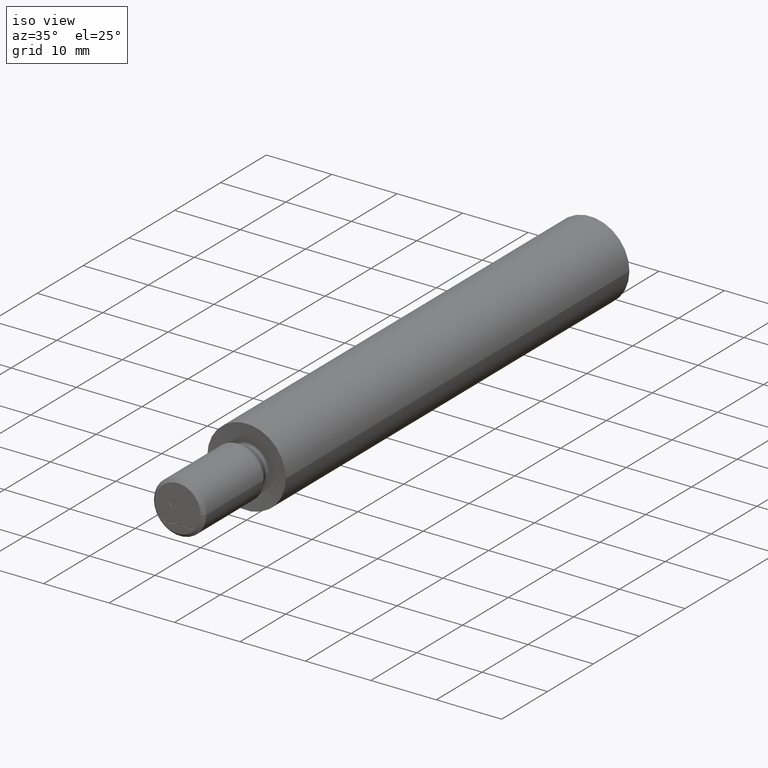
[diagram: clean part render]
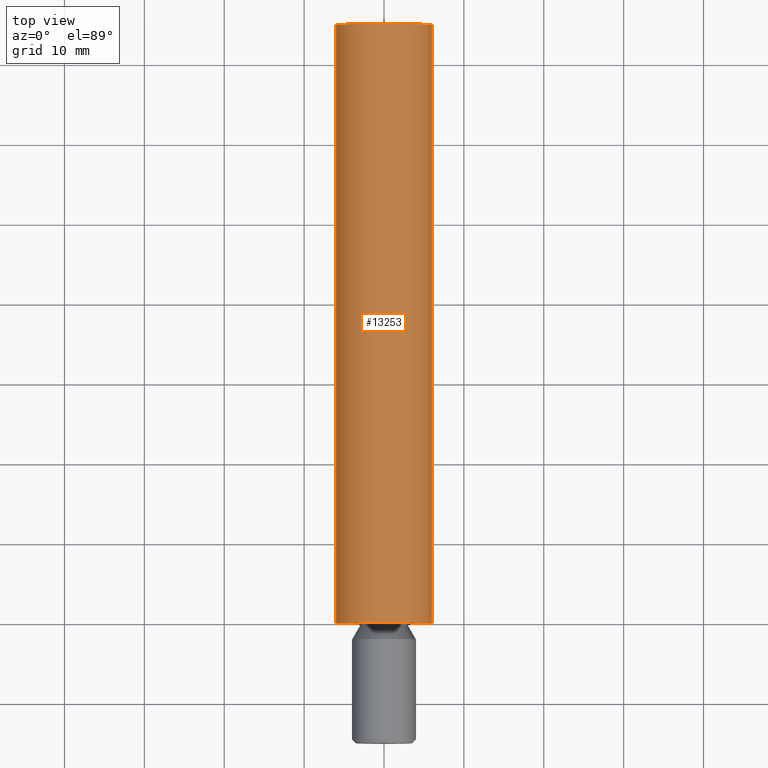
[diagram: tour spotlight — one face highlighted and labeled with its STEP entity id]
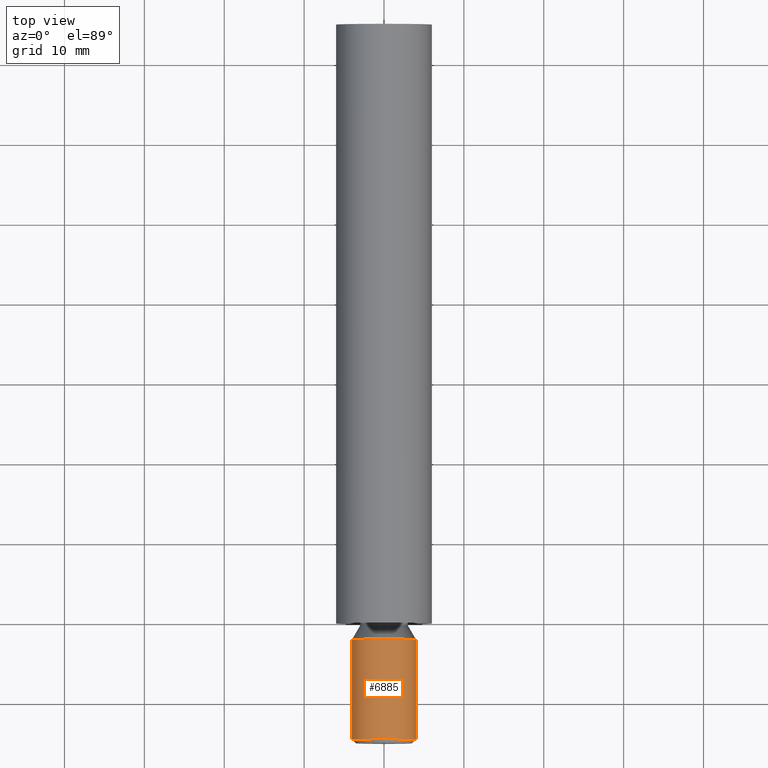
[diagram: tour spotlight — one face highlighted and labeled with its STEP entity id]
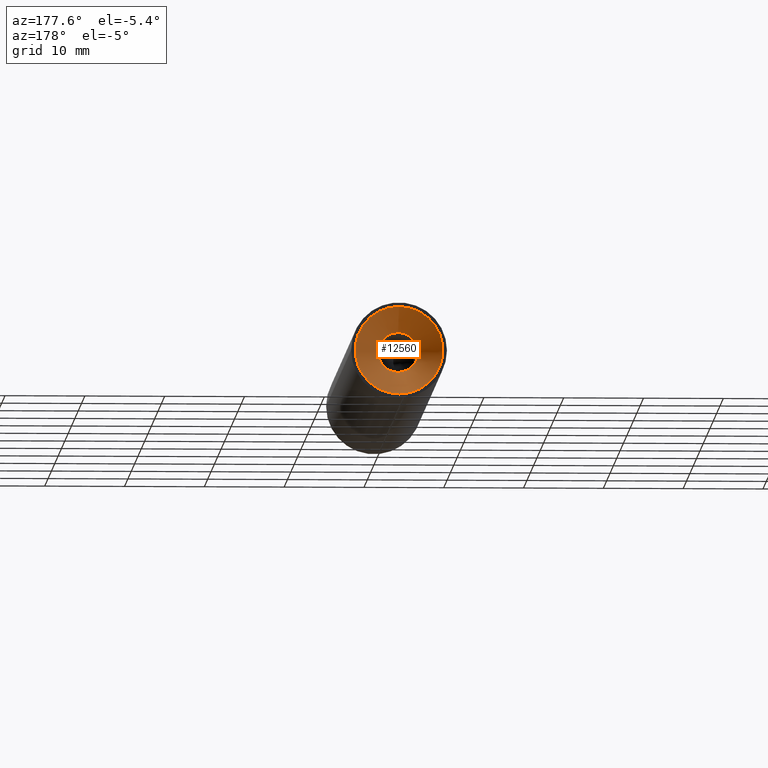
[diagram: tour spotlight — one face highlighted and labeled with its STEP entity id]
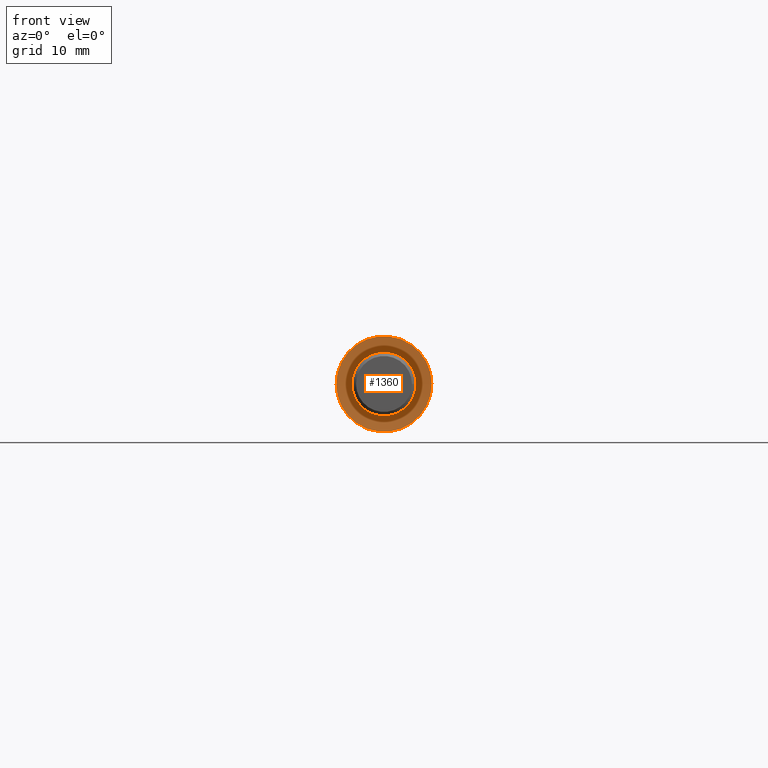
[diagram: tour spotlight — one face highlighted and labeled with its STEP entity id]
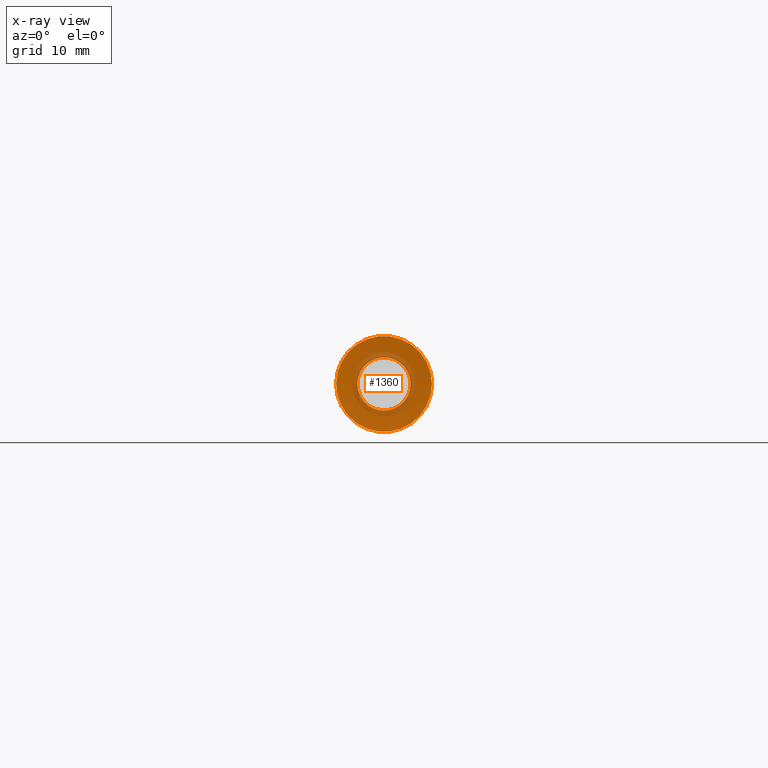
[diagram: x-ray of the same camera — body ghosted, this tour face saturated]
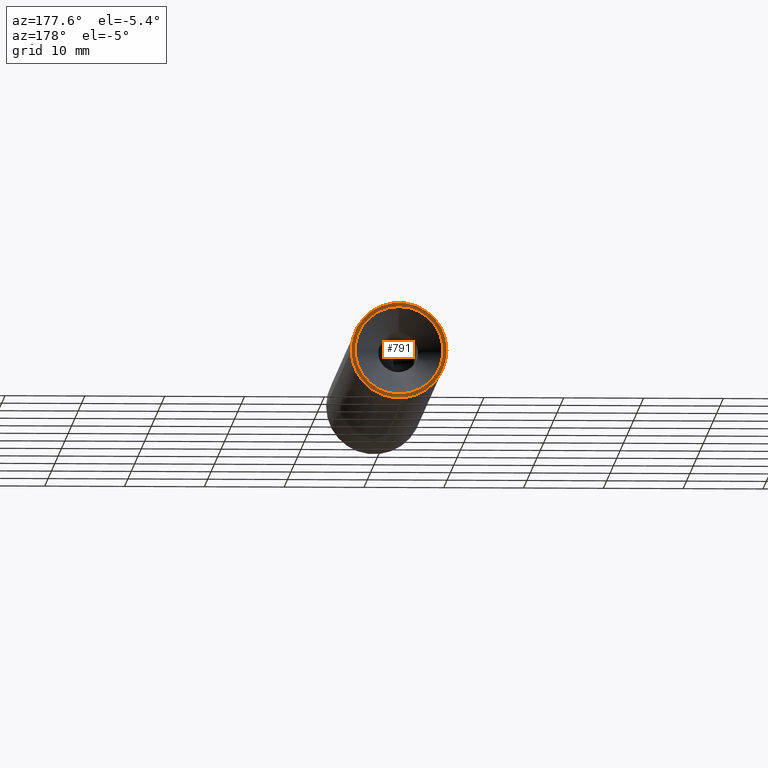
[diagram: tour spotlight — one face highlighted and labeled with its STEP entity id]
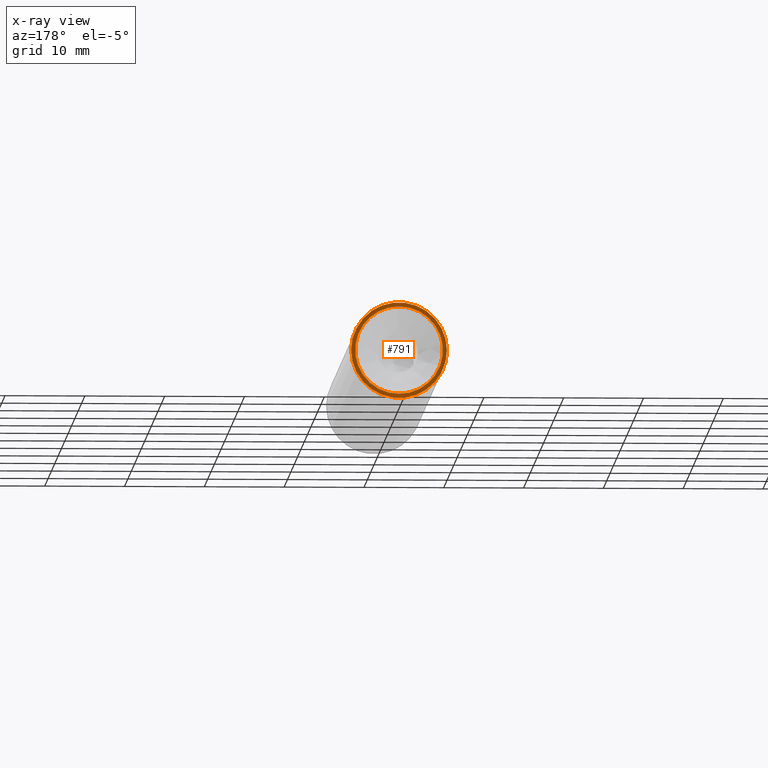
[diagram: x-ray of the same camera — body ghosted, this tour face saturated]
A machine part: a face-by-face anatomy tour. The part has 269 B-rep faces; the first image is the clean iso view, then the 5 largest visible faces are spotlighted one at a time (largest first), each with its STEP entity span.

Face 1 — top view, entity #13253. In plain terms, the highlighted cylindrical surface (bore or boss wall) has radius 6 mm, axis along (0, -1, -0).
Definition (entity closure, byte-faithful):
#669 = CARTESIAN_POINT ( 'NONE',  ( 1.925929944387235853E-31, -15.00000000000000000, 0.000000000000000000 ) ) ;
#1049 = CARTESIAN_POINT ( 'NONE',  ( 5.999999999999996447, 75.00000000000000000, 0.000000000000000000 ) ) ;
#1297 = CIRCLE ( 'NONE', #13381, 6.000000000000009770 ) ;
#1742 = EDGE_CURVE ( 'NONE', #12893, #12893, #12750, .T. ) ;
#3466 = AXIS2_PLACEMENT_3D ( 'NONE', #12904, #11748, #8670 ) ;
#3836 = EDGE_LOOP ( 'NONE', ( #10700 ) ) ;
#4492 = FACE_OUTER_BOUND ( 'NONE', #3836, .T. ) ;
#4687 = CARTESIAN_POINT ( 'NONE',  ( 1.604941620322696398E-31, 0.000000000000000000, 0.000000000000000000 ) ) ;
#4933 = DIRECTION ( 'NONE',  ( 1.000000000000000000, 0.000000000000000000, 0.000000000000000000 ) ) ;
#5698 = DIRECTION ( 'NONE',  ( 1.000000000000000000, 2.139922160430261983E-33, 0.000000000000000000 ) ) ;
#5813 = FACE_OUTER_BOUND ( 'NONE', #12936, .T. ) ;
#6008 = AXIS2_PLACEMENT_3D ( 'NONE', #669, #13695, #4933 ) ;
#6706 = EDGE_CURVE ( 'NONE', #13224, #13224, #1297, .T. ) ;
#7904 = DIRECTION ( 'NONE',  ( 2.139922160430262325E-33, -1.000000000000000000, -0.000000000000000000 ) ) ;
#8670 = DIRECTION ( 'NONE',  ( 1.000000000000000000, 0.000000000000000000, 0.000000000000000000 ) ) ;
#9497 = ORIENTED_EDGE ( 'NONE', *, *, #1742, .T. ) ;
#10700 = ORIENTED_EDGE ( 'NONE', *, *, #6706, .F. ) ;
#11393 = CYLINDRICAL_SURFACE ( 'NONE', #6008, 6.000000000000003553 ) ;
#11645 = CARTESIAN_POINT ( 'NONE',  ( 6.000000000000009770, 1.283953296258159242E-32, 0.000000000000000000 ) ) ;
#11748 = DIRECTION ( 'NONE',  ( 2.139922160430262325E-33, -1.000000000000000000, -0.000000000000000000 ) ) ;
#12750 = CIRCLE ( 'NONE', #3466, 5.999999999999996447 ) ;
#12893 = VERTEX_POINT ( 'NONE', #1049 ) ;
#12904 = CARTESIAN_POINT ( 'NONE',  ( 0.000000000000000000, 75.00000000000000000, 0.000000000000000000 ) ) ;
#12936 = EDGE_LOOP ( 'NONE', ( #9497 ) ) ;
#13224 = VERTEX_POINT ( 'NONE', #11645 ) ;
#13253 = ADVANCED_FACE ( 'NONE', ( #5813, #4492 ), #11393, .T. ) ;
#13381 = AXIS2_PLACEMENT_3D ( 'NONE', #4687, #7904, #5698 ) ;
#13695 = DIRECTION ( 'NONE',  ( 2.139922160430262325E-33, -1.000000000000000000, -0.000000000000000000 ) ) ;

Face 2 — top view, entity #6885. In plain terms, the highlighted cylindrical surface (bore or boss wall) has radius 4 mm, axis along (0, -1, -0).
Definition (entity closure, byte-faithful):
#623 = ORIENTED_EDGE ( 'NONE', *, *, #6923, .T. ) ;
#1381 = EDGE_LOOP ( 'NONE', ( #623 ) ) ;
#1490 = DIRECTION ( 'NONE',  ( 1.000000000000000000, 0.000000000000000000, 0.000000000000000000 ) ) ;
#1540 = AXIS2_PLACEMENT_3D ( 'NONE', #4414, #12796, #12834 ) ;
#1937 = CIRCLE ( 'NONE', #3356, 4.000000000000000000 ) ;
#2947 = EDGE_LOOP ( 'NONE', ( #7536 ) ) ;
#3356 = AXIS2_PLACEMENT_3D ( 'NONE', #8978, #5800, #1490 ) ;
#4120 = FACE_OUTER_BOUND ( 'NONE', #1381, .T. ) ;
#4414 = CARTESIAN_POINT ( 'NONE',  ( 1.925929944387235853E-31, -15.00000000000000000, 0.000000000000000000 ) ) ;
#5517 = DIRECTION ( 'NONE',  ( 1.000000000000000000, 0.000000000000000000, 0.000000000000000000 ) ) ;
#5800 = DIRECTION ( 'NONE',  ( 2.139922160430262325E-33, -1.000000000000000000, -0.000000000000000000 ) ) ;
#6728 = CYLINDRICAL_SURFACE ( 'NONE', #1540, 4.000000000000000888 ) ;
#6885 = ADVANCED_FACE ( 'NONE', ( #4120, #12523 ), #6728, .T. ) ;
#6923 = EDGE_CURVE ( 'NONE', #10591, #10591, #9721, .T. ) ;
#7446 = VERTEX_POINT ( 'NONE', #10445 ) ;
#7536 = ORIENTED_EDGE ( 'NONE', *, *, #8329, .T. ) ;
#7615 = DIRECTION ( 'NONE',  ( -2.139922160430250693E-33, 1.000000000000000000, 0.000000000000000000 ) ) ;
#7715 = CARTESIAN_POINT ( 'NONE',  ( 1.915230333585084348E-31, -14.49999999999998934, 0.000000000000000000 ) ) ;
#8329 = EDGE_CURVE ( 'NONE', #7446, #7446, #1937, .T. ) ;
#8978 = CARTESIAN_POINT ( 'NONE',  ( 1.647740063531301761E-31, -2.000000000000000000, 0.000000000000000000 ) ) ;
#9721 = CIRCLE ( 'NONE', #12413, 4.000000000000000888 ) ;
#10445 = CARTESIAN_POINT ( 'NONE',  ( 4.000000000000000000, -2.000000000000000000, 0.000000000000000000 ) ) ;
#10591 = VERTEX_POINT ( 'NONE', #11549 ) ;
#11549 = CARTESIAN_POINT ( 'NONE',  ( 4.000000000000000888, -14.49999999999998934, 0.000000000000000000 ) ) ;
#12413 = AXIS2_PLACEMENT_3D ( 'NONE', #7715, #7615, #5517 ) ;
#12523 = FACE_OUTER_BOUND ( 'NONE', #2947, .T. ) ;
#12796 = DIRECTION ( 'NONE',  ( 2.139922160430262325E-33, -1.000000000000000000, -0.000000000000000000 ) ) ;
#12834 = DIRECTION ( 'NONE',  ( 1.000000000000000000, 0.000000000000000000, 0.000000000000000000 ) ) ;

Face 3 — auxiliary view, entity #12560. In plain terms, the highlighted conical surface has half-angle 45 deg.
Definition (entity closure, byte-faithful):
#660 = DIRECTION ( 'NONE',  ( 0.000000000000000000, 0.000000000000000000, 1.000000000000000000 ) ) ;
#1553 = EDGE_CURVE ( 'NONE', #3659, #3659, #7289, .T. ) ;
#1814 = ORIENTED_EDGE ( 'NONE', *, *, #1553, .T. ) ;
#1892 = CARTESIAN_POINT ( 'NONE',  ( -1.604941620322696617E-31, 75.00000000000000000, 0.000000000000000000 ) ) ;
#2114 = CARTESIAN_POINT ( 'NONE',  ( -1.604941620322696617E-31, 75.00000000000000000, 5.500000000000000000 ) ) ;
#2487 = CIRCLE ( 'NONE', #12819, 2.499999999999992895 ) ;
#3057 = DIRECTION ( 'NONE',  ( 0.000000000000000000, 0.000000000000000000, 1.000000000000000000 ) ) ;
#3659 = VERTEX_POINT ( 'NONE', #2114 ) ;
#3852 = DIRECTION ( 'NONE',  ( 0.000000000000000000, -1.000000000000000000, 0.000000000000000000 ) ) ;
#4384 = EDGE_CURVE ( 'NONE', #4822, #4822, #2487, .T. ) ;
#4423 = AXIS2_PLACEMENT_3D ( 'NONE', #9792, #5478, #4462 ) ;
#4462 = DIRECTION ( 'NONE',  ( 0.000000000000000000, 0.000000000000000000, 1.000000000000000000 ) ) ;
#4822 = VERTEX_POINT ( 'NONE', #9589 ) ;
#4923 = CARTESIAN_POINT ( 'NONE',  ( -1.604941620322696617E-31, 71.99999999999998579, 0.000000000000000000 ) ) ;
#5478 = DIRECTION ( 'NONE',  ( -0.000000000000000000, 1.000000000000000000, -0.000000000000000000 ) ) ;
#6093 = EDGE_LOOP ( 'NONE', ( #1814 ) ) ;
#6979 = AXIS2_PLACEMENT_3D ( 'NONE', #1892, #9286, #3057 ) ;
#7130 = FACE_OUTER_BOUND ( 'NONE', #6093, .T. ) ;
#7289 = CIRCLE ( 'NONE', #6979, 5.500000000000000000 ) ;
#8290 = CONICAL_SURFACE ( 'NONE', #4423, 5.500000000000000000, 0.7853981633974479459 ) ;
#9286 = DIRECTION ( 'NONE',  ( -0.000000000000000000, 1.000000000000000000, -0.000000000000000000 ) ) ;
#9589 = CARTESIAN_POINT ( 'NONE',  ( -1.604941620322696617E-31, 71.99999999999998579, 2.499999999999992895 ) ) ;
#9792 = CARTESIAN_POINT ( 'NONE',  ( -1.604941620322696617E-31, 75.00000000000000000, 0.000000000000000000 ) ) ;
#10954 = ORIENTED_EDGE ( 'NONE', *, *, #4384, .T. ) ;
#11752 = FACE_BOUND ( 'NONE', #12324, .T. ) ;
#12324 = EDGE_LOOP ( 'NONE', ( #10954 ) ) ;
#12560 = ADVANCED_FACE ( 'NONE', ( #11752, #7130 ), #8290, .F. ) ;
#12819 = AXIS2_PLACEMENT_3D ( 'NONE', #4923, #3852, #660 ) ;

Face 4 — front view, entity #1360. An x-ray twin of the same camera follows (body ghosted, this face saturated) — the face is partly hidden behind the body. In plain terms, the highlighted conical surface has half-angle 85 deg.
Definition (entity closure, byte-faithful):
#670 = EDGE_CURVE ( 'NONE', #2336, #2336, #8296, .T. ) ;
#1149 = EDGE_LOOP ( 'NONE', ( #10823 ) ) ;
#1256 = CARTESIAN_POINT ( 'NONE',  ( 1.599924287923588925E-31, 0.2344633132870081738, 0.000000000000000000 ) ) ;
#1297 = CIRCLE ( 'NONE', #13381, 6.000000000000009770 ) ;
#1360 = ADVANCED_FACE ( 'NONE', ( #5658, #3018 ), #10084, .F. ) ;
#2336 = VERTEX_POINT ( 'NONE', #3093 ) ;
#3018 = FACE_BOUND ( 'NONE', #1149, .T. ) ;
#3093 = CARTESIAN_POINT ( 'NONE',  ( 3.320072066050799187, 0.2344633132870081738, 0.000000000000000000 ) ) ;
#3244 = EDGE_LOOP ( 'NONE', ( #8930 ) ) ;
#3439 = DIRECTION ( 'NONE',  ( 2.139922160430262325E-33, -1.000000000000000000, -0.000000000000000000 ) ) ;
#3522 = DIRECTION ( 'NONE',  ( 1.000000000000000000, 0.000000000000000000, 0.000000000000000000 ) ) ;
#3615 = AXIS2_PLACEMENT_3D ( 'NONE', #1256, #7761, #3522 ) ;
#4687 = CARTESIAN_POINT ( 'NONE',  ( 1.604941620322696398E-31, 0.000000000000000000, 0.000000000000000000 ) ) ;
#5658 = FACE_OUTER_BOUND ( 'NONE', #3244, .T. ) ;
#5698 = DIRECTION ( 'NONE',  ( 1.000000000000000000, 2.139922160430261983E-33, 0.000000000000000000 ) ) ;
#6559 = DIRECTION ( 'NONE',  ( 1.000000000000000000, 0.000000000000000000, 0.000000000000000000 ) ) ;
#6706 = EDGE_CURVE ( 'NONE', #13224, #13224, #1297, .T. ) ;
#7761 = DIRECTION ( 'NONE',  ( 2.139922160430262325E-33, -1.000000000000000000, -0.000000000000000000 ) ) ;
#7904 = DIRECTION ( 'NONE',  ( 2.139922160430262325E-33, -1.000000000000000000, -0.000000000000000000 ) ) ;
#8219 = AXIS2_PLACEMENT_3D ( 'NONE', #9703, #3439, #6559 ) ;
#8296 = CIRCLE ( 'NONE', #3615, 3.320072066050799187 ) ;
#8930 = ORIENTED_EDGE ( 'NONE', *, *, #6706, .T. ) ;
#9703 = CARTESIAN_POINT ( 'NONE',  ( 1.599924287923588925E-31, 0.2344633132870081738, 0.000000000000000000 ) ) ;
#10084 = CONICAL_SURFACE ( 'NONE', #8219, 3.320072066050799187, 1.483529864195179737 ) ;
#10823 = ORIENTED_EDGE ( 'NONE', *, *, #670, .F. ) ;
#11645 = CARTESIAN_POINT ( 'NONE',  ( 6.000000000000009770, 1.283953296258159242E-32, 0.000000000000000000 ) ) ;
#13224 = VERTEX_POINT ( 'NONE', #11645 ) ;
#13381 = AXIS2_PLACEMENT_3D ( 'NONE', #4687, #7904, #5698 ) ;

Face 5 — auxiliary view, entity #791. An x-ray twin of the same camera follows (body ghosted, this face saturated) — the face is partly hidden behind the body. In plain terms, the highlighted planar face has unit normal (-0, 1, 0).
Definition (entity closure, byte-faithful):
#237 = PLANE ( 'NONE',  #9464 ) ;
#791 = ADVANCED_FACE ( 'NONE', ( #9128, #7972 ), #237, .T. ) ;
#1049 = CARTESIAN_POINT ( 'NONE',  ( 5.999999999999996447, 75.00000000000000000, 0.000000000000000000 ) ) ;
#1395 = DIRECTION ( 'NONE',  ( -1.000000000000000000, -2.139922160430262325E-33, 0.000000000000000000 ) ) ;
#1547 = ORIENTED_EDGE ( 'NONE', *, *, #1742, .F. ) ;
#1553 = EDGE_CURVE ( 'NONE', #3659, #3659, #7289, .T. ) ;
#1742 = EDGE_CURVE ( 'NONE', #12893, #12893, #12750, .T. ) ;
#1892 = CARTESIAN_POINT ( 'NONE',  ( -1.604941620322696617E-31, 75.00000000000000000, 0.000000000000000000 ) ) ;
#2114 = CARTESIAN_POINT ( 'NONE',  ( -1.604941620322696617E-31, 75.00000000000000000, 5.500000000000000000 ) ) ;
#3057 = DIRECTION ( 'NONE',  ( 0.000000000000000000, 0.000000000000000000, 1.000000000000000000 ) ) ;
#3466 = AXIS2_PLACEMENT_3D ( 'NONE', #12904, #11748, #8670 ) ;
#3659 = VERTEX_POINT ( 'NONE', #2114 ) ;
#5540 = ORIENTED_EDGE ( 'NONE', *, *, #1553, .F. ) ;
#6979 = AXIS2_PLACEMENT_3D ( 'NONE', #1892, #9286, #3057 ) ;
#7289 = CIRCLE ( 'NONE', #6979, 5.500000000000000000 ) ;
#7679 = EDGE_LOOP ( 'NONE', ( #1547 ) ) ;
#7972 = FACE_OUTER_BOUND ( 'NONE', #7679, .T. ) ;
#8670 = DIRECTION ( 'NONE',  ( 1.000000000000000000, 0.000000000000000000, 0.000000000000000000 ) ) ;
#9128 = FACE_BOUND ( 'NONE', #11825, .T. ) ;
#9286 = DIRECTION ( 'NONE',  ( -0.000000000000000000, 1.000000000000000000, -0.000000000000000000 ) ) ;
#9464 = AXIS2_PLACEMENT_3D ( 'NONE', #9747, #10795, #1395 ) ;
#9747 = CARTESIAN_POINT ( 'NONE',  ( 1.373780055810155475E-65, 75.00000000000000000, 0.000000000000000000 ) ) ;
#10795 = DIRECTION ( 'NONE',  ( -2.139922160430262325E-33, 1.000000000000000000, 0.000000000000000000 ) ) ;
#11748 = DIRECTION ( 'NONE',  ( 2.139922160430262325E-33, -1.000000000000000000, -0.000000000000000000 ) ) ;
#11825 = EDGE_LOOP ( 'NONE', ( #5540 ) ) ;
#12750 = CIRCLE ( 'NONE', #3466, 5.999999999999996447 ) ;
#12893 = VERTEX_POINT ( 'NONE', #1049 ) ;
#12904 = CARTESIAN_POINT ( 'NONE',  ( 0.000000000000000000, 75.00000000000000000, 0.000000000000000000 ) ) ;